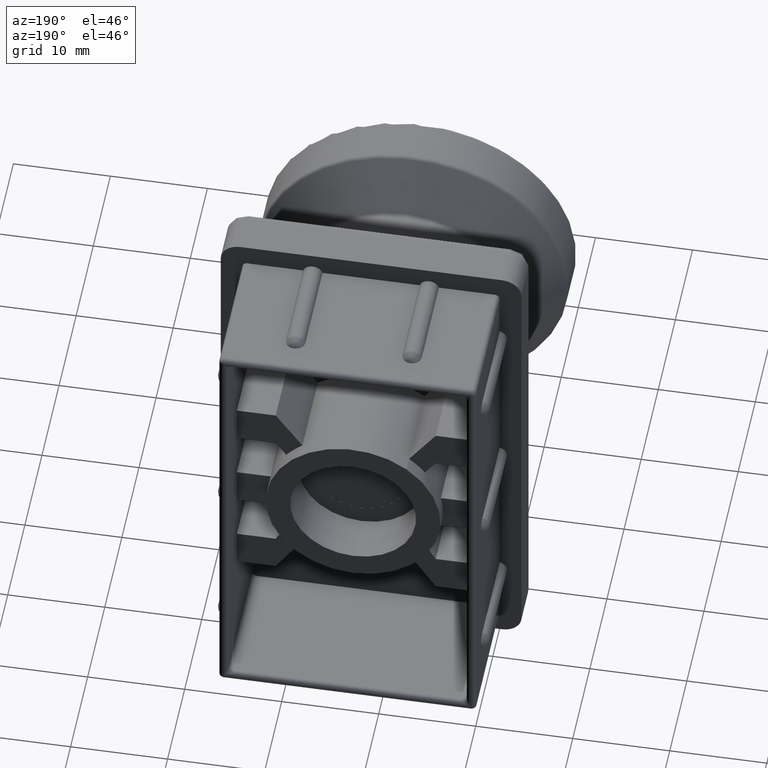
[diagram: clean part render]
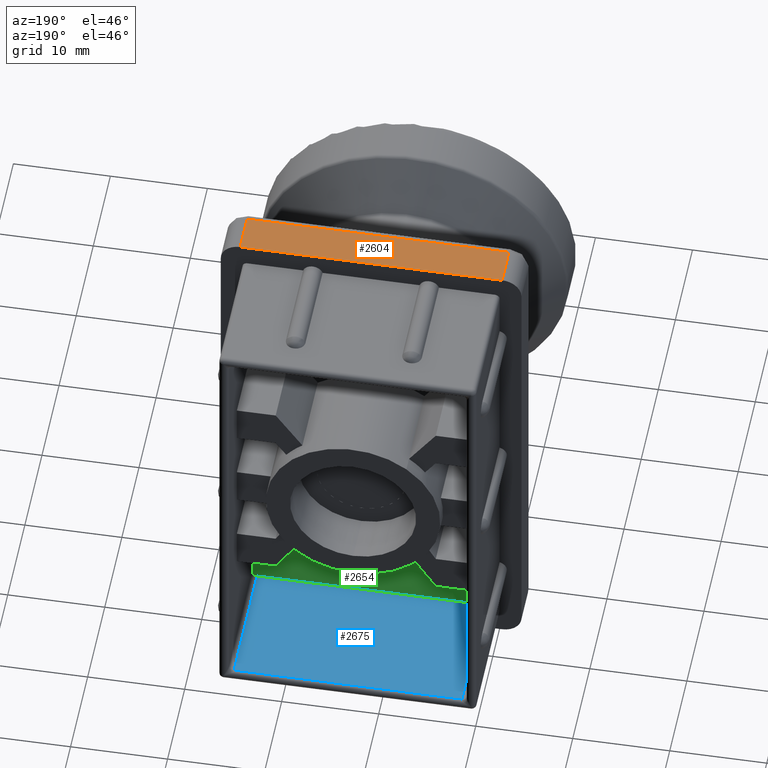
[diagram: same view with three faces highlighted in distinct colors, each labeled with its STEP entity id]
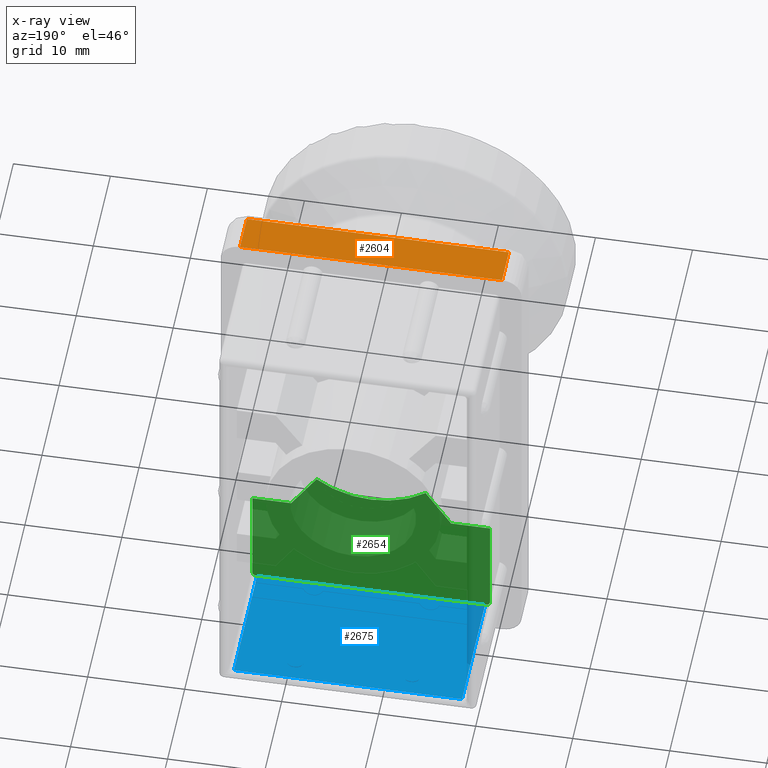
[diagram: x-ray of the same camera — body ghosted, the three highlighted faces saturated]
A machine part, auxiliary view with three faces highlighted in distinct colors.
The next image is the same camera in x-ray (body ghosted, the three faces saturated) — at least one of them is partly hidden behind the body in this view.
Their STEP definitions:

[orange] entity #2604 — the highlighted planar face has unit normal (-0, -0, 1).
#230=PLANE('',#2830);
#348=FACE_OUTER_BOUND('',#516,.T.);
#516=EDGE_LOOP('',(#2113,#2114,#2115,#2116));
#740=LINE('',#4672,#956);
#742=LINE('',#4676,#958);
#744=LINE('',#4682,#960);
#745=LINE('',#4683,#961);
#956=VECTOR('',#3371,4.);
#958=VECTOR('',#3375,27.);
#960=VECTOR('',#3381,27.);
#961=VECTOR('',#3382,4.);
#1267=VERTEX_POINT('',#4660);
#1272=VERTEX_POINT('',#4670);
#1273=VERTEX_POINT('',#4675);
#1275=VERTEX_POINT('',#4681);
#1584=EDGE_CURVE('',#1272,#1267,#740,.T.);
#1586=EDGE_CURVE('',#1267,#1273,#742,.T.);
#1589=EDGE_CURVE('',#1272,#1275,#744,.T.);
#1590=EDGE_CURVE('',#1273,#1275,#745,.T.);
#2113=ORIENTED_EDGE('',*,*,#1584,.F.);
#2114=ORIENTED_EDGE('',*,*,#1589,.T.);
#2115=ORIENTED_EDGE('',*,*,#1590,.F.);
#2116=ORIENTED_EDGE('',*,*,#1586,.F.);
#2604=ADVANCED_FACE('',(#348),#230,.T.);
#2830=AXIS2_PLACEMENT_3D('',#4680,#3379,#3380);
#3371=DIRECTION('',(0.,1.,0.));
#3375=DIRECTION('',(0.,0.,1.));
#3379=DIRECTION('center_axis',(-1.,0.,0.));
#3380=DIRECTION('ref_axis',(0.,0.,1.));
#3381=DIRECTION('',(0.,0.,1.));
#3382=DIRECTION('',(0.,-1.,0.));
#4660=CARTESIAN_POINT('',(-2.25,18.,-26.75));
#4670=CARTESIAN_POINT('',(-2.25000000000001,14.,-26.75));
#4672=CARTESIAN_POINT('',(-2.25000000000001,14.,-26.75));
#4675=CARTESIAN_POINT('',(-2.25000000000001,18.,0.250000000000006));
#4676=CARTESIAN_POINT('',(-2.25000000000001,18.,-21.));
#4680=CARTESIAN_POINT('Origin',(-2.25000000000001,14.,-28.75));
#4681=CARTESIAN_POINT('',(-2.25000000000001,14.,0.250000000000008));
#4682=CARTESIAN_POINT('',(-2.25000000000001,14.,-28.75));
#4683=CARTESIAN_POINT('',(-2.25000000000001,14.,0.250000000000006));

[blue] entity #2675 — the highlighted planar face has unit normal (0, 0, -1).
#268=PLANE('',#2930);
#419=FACE_OUTER_BOUND('',#595,.T.);
#595=EDGE_LOOP('',(#2462,#2463,#2464,#2465));
#644=LINE('',#4069,#860);
#677=LINE('',#4264,#893);
#704=LINE('',#4368,#920);
#788=LINE('',#5398,#1004);
#860=VECTOR('',#3171,13.5);
#893=VECTOR('',#3236,13.5);
#920=VECTOR('',#3269,23.4999999999999);
#1004=VECTOR('',#3561,23.5);
#1148=VERTEX_POINT('',#4059);
#1151=VERTEX_POINT('',#4066);
#1193=VERTEX_POINT('',#4256);
#1194=VERTEX_POINT('',#4261);
#1438=EDGE_CURVE('',#1148,#1151,#644,.T.);
#1487=EDGE_CURVE('',#1194,#1193,#677,.T.);
#1518=EDGE_CURVE('',#1193,#1148,#704,.T.);
#1674=EDGE_CURVE('',#1194,#1151,#788,.T.);
#2462=ORIENTED_EDGE('',*,*,#1438,.F.);
#2463=ORIENTED_EDGE('',*,*,#1518,.F.);
#2464=ORIENTED_EDGE('',*,*,#1487,.F.);
#2465=ORIENTED_EDGE('',*,*,#1674,.T.);
#2675=ADVANCED_FACE('',(#419),#268,.F.);
#2930=AXIS2_PLACEMENT_3D('',#5479,#3652,#3653);
#3171=DIRECTION('',(0.,1.,0.));
#3236=DIRECTION('',(0.,-1.,0.));
#3269=DIRECTION('',(0.,0.,-1.));
#3561=DIRECTION('',(0.,0.,-1.));
#3652=DIRECTION('center_axis',(1.,0.,0.));
#3653=DIRECTION('ref_axis',(0.,0.,-1.));
#4059=CARTESIAN_POINT('',(45.5,0.5,-25.));
#4066=CARTESIAN_POINT('',(45.5,14.,-25.));
#4069=CARTESIAN_POINT('',(45.5,0.,-25.));
#4256=CARTESIAN_POINT('',(45.5,0.5,-1.50000000000004));
#4261=CARTESIAN_POINT('',(45.5,14.,-1.49999999999998));
#4264=CARTESIAN_POINT('',(45.5,0.,-1.49999999999998));
#4368=CARTESIAN_POINT('',(45.5,0.5,-7.12499999999999));
#5398=CARTESIAN_POINT('',(45.5,14.,-0.999999999999983));
#5479=CARTESIAN_POINT('Origin',(45.5,0.,-0.999999999999983));

[green] entity #2654 — the highlighted planar face has unit normal (0, -1, -0).
#126=CIRCLE('',#2775,0.5);
#133=CIRCLE('',#2791,0.5);
#183=CIRCLE('',#2899,9.);
#249=PLANE('',#2898);
#398=FACE_OUTER_BOUND('',#570,.T.);
#570=EDGE_LOOP('',(#2350,#2351,#2352,#2353,#2354,#2355,#2356,#2357,#2358,
#2359));
#661=LINE('',#4186,#877);
#693=LINE('',#4295,#909);
#779=LINE('',#5379,#995);
#786=LINE('',#5394,#1002);
#788=LINE('',#5398,#1004);
#789=LINE('',#5400,#1005);
#790=LINE('',#5402,#1006);
#877=VECTOR('',#3198,10.75);
#909=VECTOR('',#3254,10.75);
#995=VECTOR('',#3540,4.76220154533819);
#1002=VECTOR('',#3555,4.);
#1004=VECTOR('',#3561,23.5);
#1005=VECTOR('',#3562,4.);
#1006=VECTOR('',#3563,4.7622015453382);
#1150=VERTEX_POINT('',#4065);
#1151=VERTEX_POINT('',#4066);
#1174=VERTEX_POINT('',#4185);
#1194=VERTEX_POINT('',#4261);
#1195=VERTEX_POINT('',#4262);
#1209=VERTEX_POINT('',#4293);
#1306=VERTEX_POINT('',#5373);
#1308=VERTEX_POINT('',#5377);
#1313=VERTEX_POINT('',#5399);
#1314=VERTEX_POINT('',#5401);
#1436=EDGE_CURVE('',#1150,#1151,#126,.T.);
#1463=EDGE_CURVE('',#1150,#1174,#661,.T.);
#1486=EDGE_CURVE('',#1194,#1195,#133,.T.);
#1503=EDGE_CURVE('',#1209,#1195,#693,.T.);
#1664=EDGE_CURVE('',#1306,#1308,#779,.T.);
#1672=EDGE_CURVE('',#1308,#1174,#786,.T.);
#1674=EDGE_CURVE('',#1194,#1151,#788,.T.);
#1675=EDGE_CURVE('',#1209,#1313,#789,.T.);
#1676=EDGE_CURVE('',#1313,#1314,#790,.T.);
#1677=EDGE_CURVE('',#1306,#1314,#183,.T.);
#2350=ORIENTED_EDGE('',*,*,#1436,.T.);
#2351=ORIENTED_EDGE('',*,*,#1674,.F.);
#2352=ORIENTED_EDGE('',*,*,#1486,.T.);
#2353=ORIENTED_EDGE('',*,*,#1503,.F.);
#2354=ORIENTED_EDGE('',*,*,#1675,.T.);
#2355=ORIENTED_EDGE('',*,*,#1676,.T.);
#2356=ORIENTED_EDGE('',*,*,#1677,.F.);
#2357=ORIENTED_EDGE('',*,*,#1664,.T.);
#2358=ORIENTED_EDGE('',*,*,#1672,.T.);
#2359=ORIENTED_EDGE('',*,*,#1463,.F.);
#2654=ADVANCED_FACE('',(#398),#249,.F.);
#2775=AXIS2_PLACEMENT_3D('',#4067,#3168,#3169);
#2791=AXIS2_PLACEMENT_3D('',#4263,#3234,#3235);
#2898=AXIS2_PLACEMENT_3D('',#5397,#3559,#3560);
#2899=AXIS2_PLACEMENT_3D('',#5403,#3564,#3565);
#3168=DIRECTION('center_axis',(0.,-1.,0.));
#3169=DIRECTION('ref_axis',(0.707106781186541,0.,-0.707106781186554));
#3198=DIRECTION('',(-1.,0.,1.99590656112388E-16));
#3234=DIRECTION('center_axis',(0.,-1.,0.));
#3235=DIRECTION('ref_axis',(0.70710678118654,0.,0.707106781186555));
#3254=DIRECTION('',(1.,0.,2.49488320140485E-16));
#3540=DIRECTION('',(0.833381720219612,0.,-0.552697845485036));
#3555=DIRECTION('',(5.2245789394125E-16,0.,-1.));
#3559=DIRECTION('center_axis',(0.,1.,0.));
#3560=DIRECTION('ref_axis',(0.,0.,1.));
#3561=DIRECTION('',(0.,0.,-1.));
#3562=DIRECTION('',(0.,0.,-1.));
#3563=DIRECTION('',(-0.833381720219612,0.,-0.552697845485036));
#3564=DIRECTION('center_axis',(0.,-1.,0.));
#3565=DIRECTION('ref_axis',(-1.,0.,0.));
#4065=CARTESIAN_POINT('',(45.,14.,-25.5));
#4066=CARTESIAN_POINT('',(45.5,14.,-25.));
#4067=CARTESIAN_POINT('Origin',(45.,14.,-25.));
#4185=CARTESIAN_POINT('',(34.25,14.,-25.5));
#4186=CARTESIAN_POINT('',(45.5,14.,-25.5));
#4261=CARTESIAN_POINT('',(45.5,14.,-1.49999999999998));
#4262=CARTESIAN_POINT('',(45.,14.,-0.999999999999983));
#4263=CARTESIAN_POINT('Origin',(45.,14.,-1.49999999999998));
#4293=CARTESIAN_POINT('',(34.25,14.,-0.999999999999988));
#4295=CARTESIAN_POINT('',(0.999999999999991,14.,-0.999999999999994));
#5373=CARTESIAN_POINT('',(30.2812682841136,14.,-18.8679414661261));
#5377=CARTESIAN_POINT('',(34.25,14.,-21.5));
#5379=CARTESIAN_POINT('',(26.2683379486128,14.,-16.2065704560583));
#5394=CARTESIAN_POINT('',(34.25,14.,-17.375));
#5397=CARTESIAN_POINT('Origin',(23.25,14.,-13.25));
#5398=CARTESIAN_POINT('',(45.5,14.,-0.999999999999983));
#5399=CARTESIAN_POINT('',(34.25,14.,-4.99999999999999));
#5400=CARTESIAN_POINT('',(34.25,14.,-9.12499999999999));
#5401=CARTESIAN_POINT('',(30.2812682841136,14.,-7.63205853387392));
#5402=CARTESIAN_POINT('',(26.2683379486128,14.,-10.2934295439416));
#5403=CARTESIAN_POINT('Origin',(23.25,14.,-13.25));